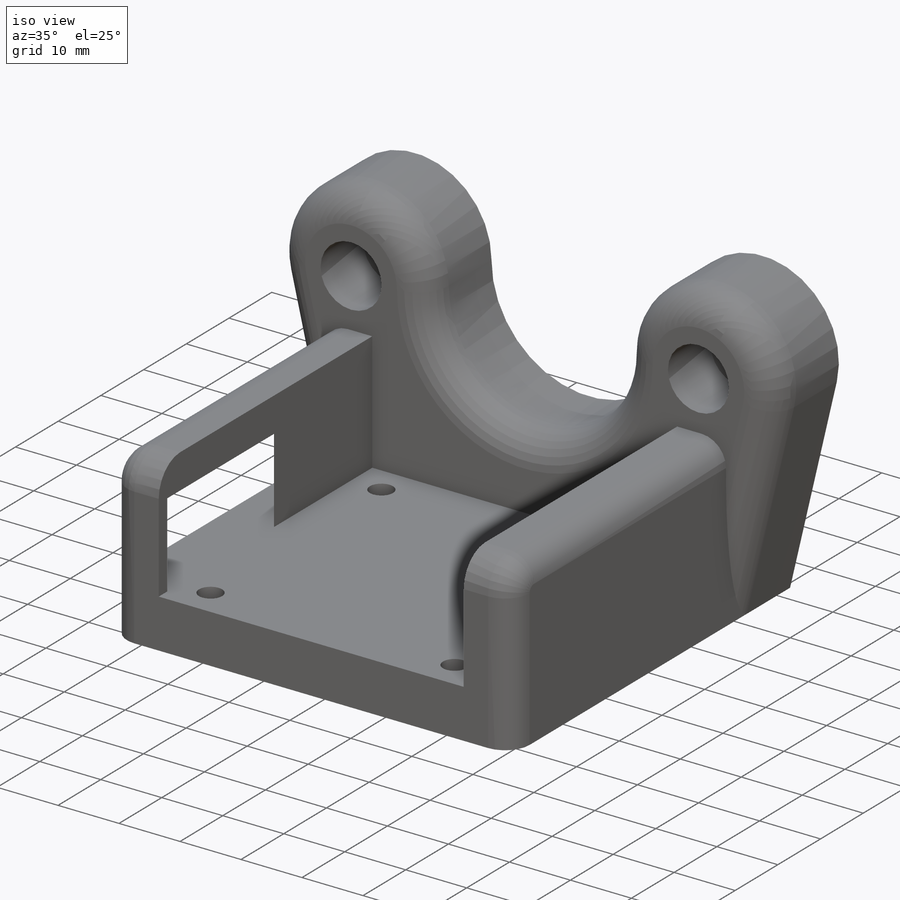
[diagram: iso view]
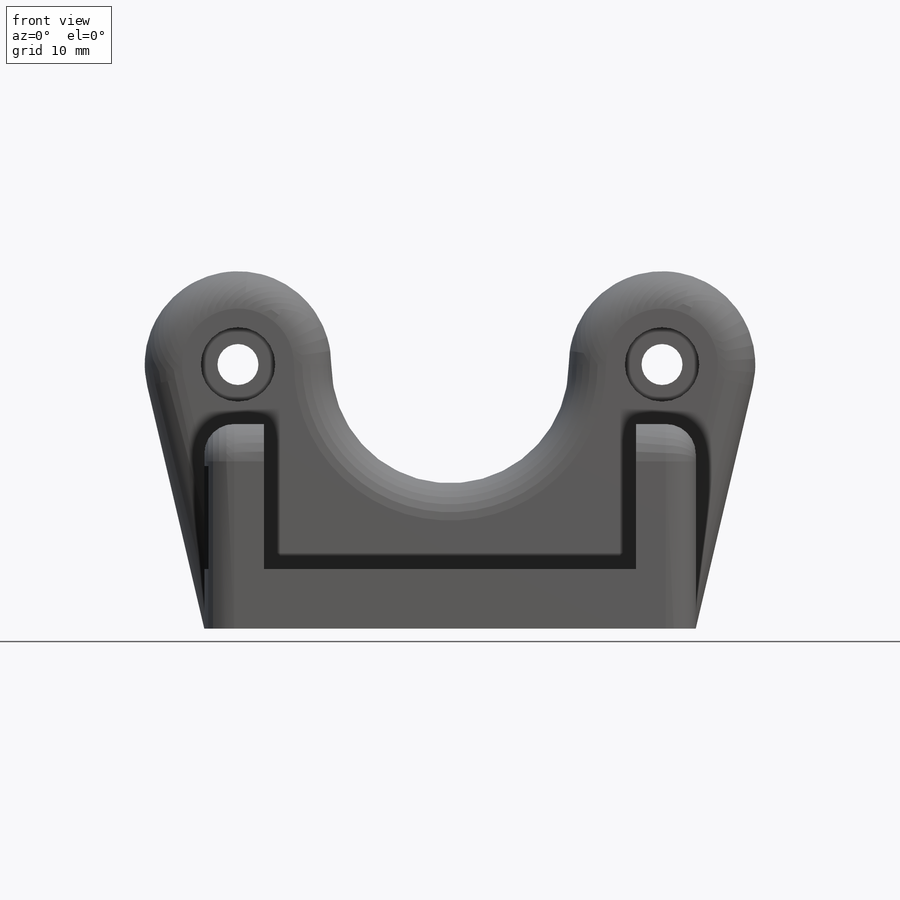
[diagram: front view]
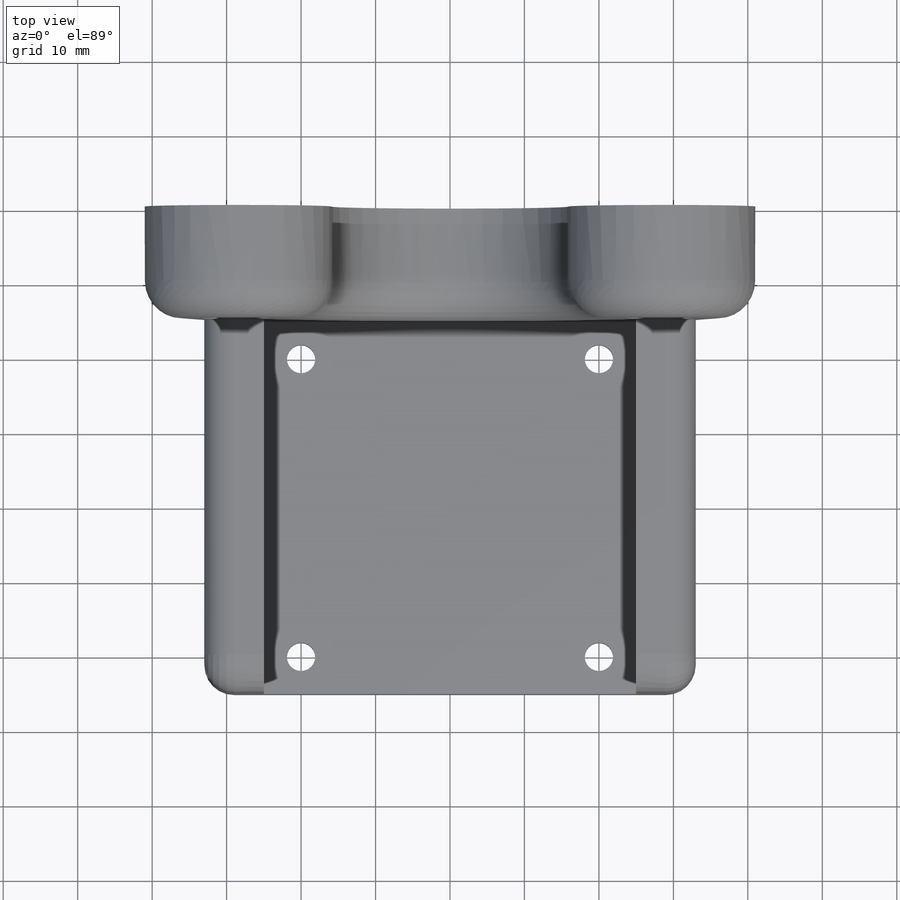
[diagram: top view]
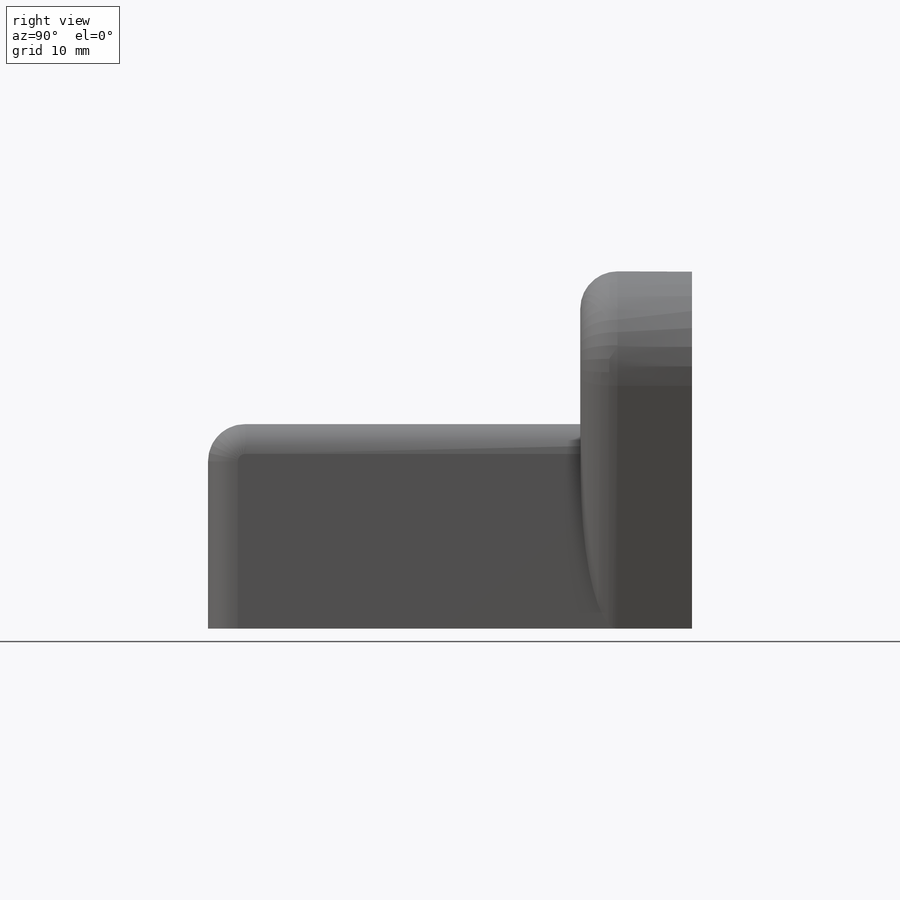
[diagram: right view]
SOLIDWORKS PART (.sldprt)
format: sldprt  version: not decoded by parser v0  size: 377,856 bytes
history: native  units: mm
features: sketch x7, extrude x4, cut_extrude x3, fillet x3, material x1, chamfer x1 (+12 scaffold rows collapsed)
feature tree (31):
  scaffold x12  (default folders/planes/origin — collapsed)
  material  "Material <not specified>"
  sketch  "Sketch1"  dims[c1.D14=~2.471336mm c1.D11=~87.857659mm c1.D1=28.475mm c1.D2=28.475mm c1.D3=39.7mm c1.D4=8.0mm c1.D5=25.0mm c1.D6=25.0mm c1.D7=8.0mm c1.D8=8.0mm c1.D9=15.0mm c1.D10=15.0mm c2.D11=40.0mm c2.D3=35.475mm c2.D12=8.0mm c2.D13=8.0mm]
  extrude  "Boss-Extrude2"  Depth=65mm
  extrude  "Boss-Extrude3"  [1 undecoded]
  sketch  "Sketch1<6>"  dims[D1=15.0mm]
  extrude  "Boss-Extrude4"  [1 undecoded]
  sketch  "Sketch1<7>"  dims[D1=15.0mm]
  extrude  "Boss-Extrude5"  [1 undecoded]
  sketch  "Sketch1<8>"  dims[D1=5.0mm]
  sketch  "Sketch2"  dims[c1.D1=~1.821742mm c1.D3=~1.93122mm c2.D1=5.0mm c2.D2=5.0mm c3.D1=5.0mm]
  cut_extrude  "Cut-Extrude1"  [1 undecoded]
  sketch  "Sketch3"  dims[D1=~3.723596mm]
  cut_extrude  "Cut-Extrude2"  Depth=3mm
  sketch  "Sketch4"  dims[D1=6.9mm D2=11.4mm D3=2.0mm D4=6.9mm D5=25.0mm]
  cut_extrude  "Cut-Extrude3"  [1 undecoded]
  chamfer  "Chamfer1"  Distance=8mm Angle=60deg
  fillet  "Fillet1"  Radius=5mm
  fillet  "Fillet2"  Radius=5mm
  fillet  "Fillet8"  Radius=4mm
decode coverage: 13 of 18 modeling features carry decoded parameters
note: ~ marks probable driven/reference dimensions
note: 5 parameter values undecoded
summary: no parameter record found for 5 features
note: suppression state not decoded; provenance and decode notes live in map.json
